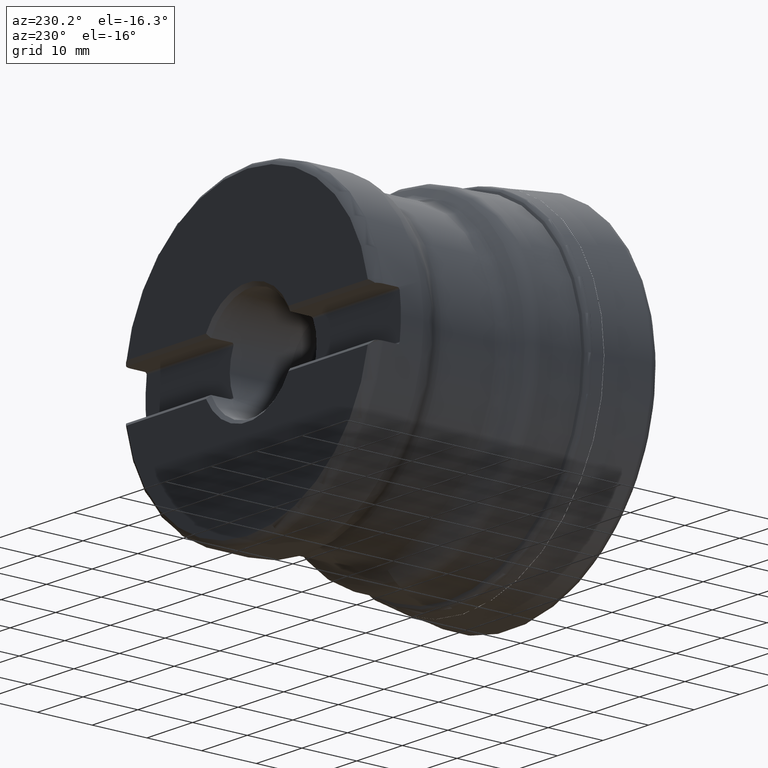
[diagram: clean part render]
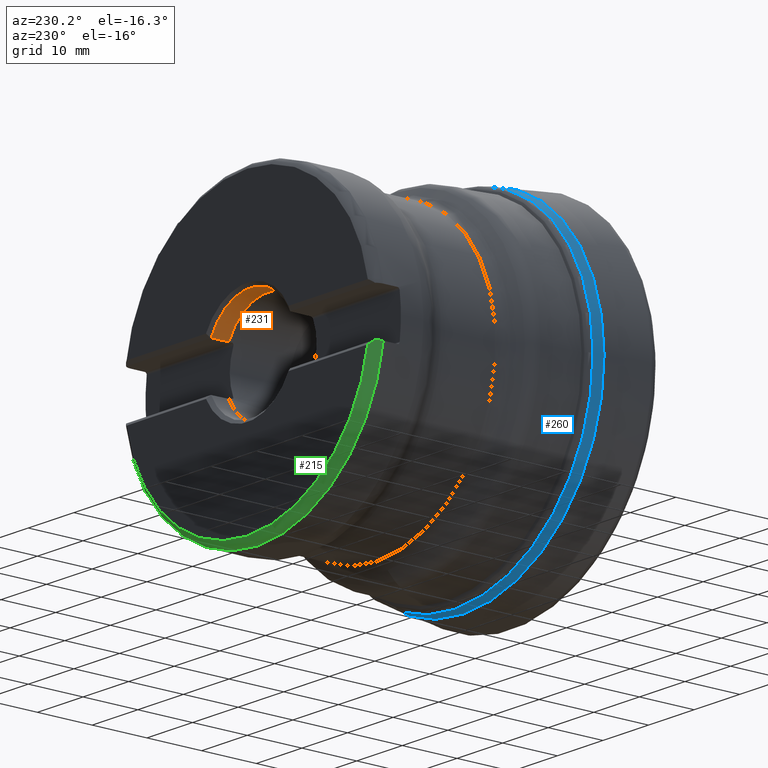
[diagram: same view with three faces highlighted in distinct colors, each labeled with its STEP entity id]
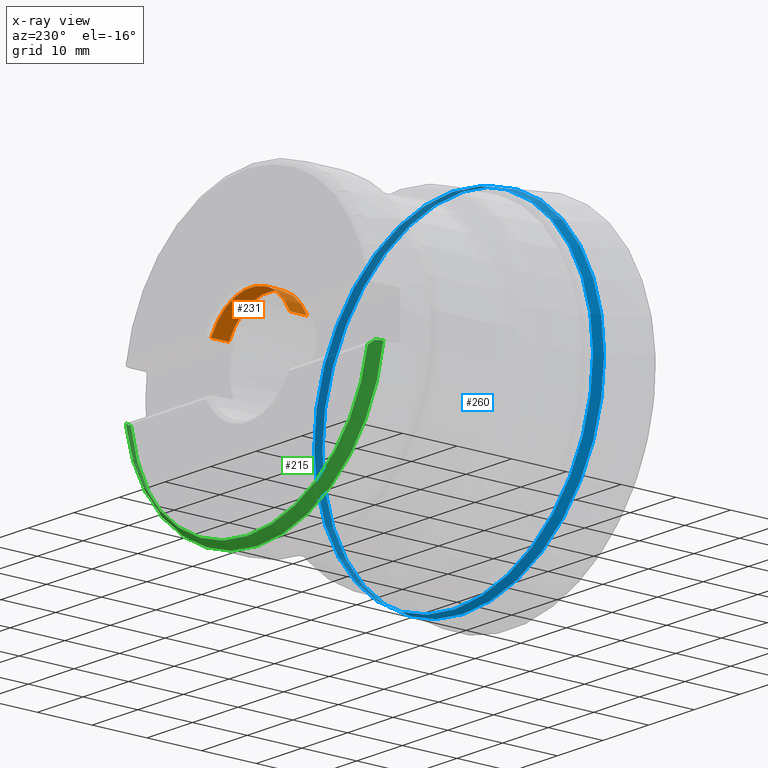
[diagram: x-ray of the same camera — body ghosted, the three highlighted faces saturated]
A machine part, auxiliary view with three faces highlighted in distinct colors.
The next image is the same camera in x-ray (body ghosted, the three faces saturated) — at least one of them is partly hidden behind the body in this view.
Their STEP definitions:

[orange] entity #231 — the highlighted conical surface has half-angle 1.5 deg.
#173=CONICAL_SURFACE('',#1142,9.525,1.50000000000001);
#201=FACE_OUTER_BOUND('',#519,.T.);
#231=ADVANCED_FACE('',(#201),#173,.F.);
#312=B_SPLINE_CURVE_WITH_KNOTS('',3,(#1762,#1763,#1764,#1765,#1766,#1767,
#1768),.UNSPECIFIED.,.F.,.F.,(4,3,4),(0.,0.614920846963345,1.),
 .UNSPECIFIED.);
#313=B_SPLINE_CURVE_WITH_KNOTS('',3,(#1772,#1773,#1774,#1775,#1776,#1777,
#1778),.UNSPECIFIED.,.F.,.F.,(4,3,4),(0.,0.38507915303665,1.),
 .UNSPECIFIED.);
#519=EDGE_LOOP('',(#711,#712,#713,#714));
#711=ORIENTED_EDGE('',*,*,#977,.T.);
#712=ORIENTED_EDGE('',*,*,#994,.T.);
#713=ORIENTED_EDGE('',*,*,#979,.T.);
#714=ORIENTED_EDGE('',*,*,#993,.F.);
#877=VERTEX_POINT('',#1761);
#878=VERTEX_POINT('',#1769);
#879=VERTEX_POINT('',#1779);
#880=VERTEX_POINT('',#1780);
#977=EDGE_CURVE('',#878,#877,#312,.T.);
#979=EDGE_CURVE('',#879,#880,#313,.T.);
#993=EDGE_CURVE('',#878,#880,#1062,.T.);
#994=EDGE_CURVE('',#877,#879,#1063,.T.);
#1062=CIRCLE('',#1139,9.525);
#1063=CIRCLE('',#1141,9.60837246437858);
#1139=AXIS2_PLACEMENT_3D('',#1826,#1302,#1303);
#1141=AXIS2_PLACEMENT_3D('',#1828,#1306,#1307);
#1142=AXIS2_PLACEMENT_3D('',#1829,#1308,#1309);
#1302=DIRECTION('',(0.,1.,0.));
#1303=DIRECTION('',(0.,0.,-1.));
#1306=DIRECTION('',(0.,1.,0.));
#1307=DIRECTION('',(0.,0.,-1.));
#1308=DIRECTION('',(0.,1.,0.));
#1309=DIRECTION('',(0.,3.88614664590141E-16,1.));
#1761=CARTESIAN_POINT('',(-8.65391220282645,49.3838659624142,4.175));
#1762=CARTESIAN_POINT('',(-8.5612499087458,46.2,4.175));
#1763=CARTESIAN_POINT('',(-8.58026279418307,46.8526079482186,4.175));
#1764=CARTESIAN_POINT('',(-8.59926352210968,47.5052162507395,4.175));
#1765=CARTESIAN_POINT('',(-8.61825233211779,48.15782489992,4.175));
#1766=CARTESIAN_POINT('',(-8.63014361035592,48.5665051186754,4.175));
#1767=CARTESIAN_POINT('',(-8.64203021474974,48.9751854734507,4.175));
#1768=CARTESIAN_POINT('',(-8.65391220282645,49.3838659624142,4.175));
#1769=CARTESIAN_POINT('',(-8.5612499087458,46.2,4.175));
#1772=CARTESIAN_POINT('',(8.65391220282645,49.3838659624142,4.175));
#1773=CARTESIAN_POINT('',(8.64203021474975,48.9751854734507,4.175));
#1774=CARTESIAN_POINT('',(8.63014361035592,48.5665051186754,4.175));
#1775=CARTESIAN_POINT('',(8.61825233211779,48.15782489992,4.175));
#1776=CARTESIAN_POINT('',(8.59926352210968,47.5052162507395,4.175));
#1777=CARTESIAN_POINT('',(8.58026279418307,46.8526079482186,4.175));
#1778=CARTESIAN_POINT('',(8.5612499087458,46.2,4.175));
#1779=CARTESIAN_POINT('',(8.65391220282645,49.3838659624142,4.175));
#1780=CARTESIAN_POINT('',(8.5612499087458,46.2,4.175));
#1826=CARTESIAN_POINT('',(0.,46.2,0.));
#1828=CARTESIAN_POINT('',(0.,49.3838659624142,0.));
#1829=CARTESIAN_POINT('',(0.,46.2,0.));

[blue] entity #260 — the highlighted face is a SurfaceOfRevolution surface.
#109=SURFACE_OF_REVOLUTION('',#326,#134);
#134=AXIS1_PLACEMENT('',#1939,#1407);
#260=ADVANCED_FACE('',(#451,#452),#109,.F.);
#326=B_SPLINE_CURVE_WITH_KNOTS('',3,(#1935,#1936,#1937,#1938),
 .UNSPECIFIED.,.F.,.F.,(4,4),(0.,1.),.UNSPECIFIED.);
#451=FACE_BOUND('',#567,.T.);
#452=FACE_BOUND('',#568,.T.);
#567=EDGE_LOOP('',(#793));
#568=EDGE_LOOP('',(#794));
#793=ORIENTED_EDGE('',*,*,#1022,.T.);
#794=ORIENTED_EDGE('',*,*,#1021,.F.);
#908=VERTEX_POINT('',#1927);
#909=VERTEX_POINT('',#1934);
#1021=EDGE_CURVE('',#908,#908,#1082,.T.);
#1022=EDGE_CURVE('',#909,#909,#1083,.T.);
#1082=CIRCLE('',#1185,30.5815042259596);
#1083=CIRCLE('',#1186,30.8908726794683);
#1185=AXIS2_PLACEMENT_3D('',#1926,#1402,#1403);
#1186=AXIS2_PLACEMENT_3D('',#1933,#1405,#1406);
#1402=DIRECTION('',(0.,1.,0.));
#1403=DIRECTION('',(0.,0.,1.));
#1405=DIRECTION('',(0.,1.,0.));
#1406=DIRECTION('',(0.,0.,1.));
#1407=DIRECTION('',(0.,1.,0.));
#1926=CARTESIAN_POINT('',(0.,12.2726431788866,0.));
#1927=CARTESIAN_POINT('',(0.,12.2726431788866,30.5815042259596));
#1933=CARTESIAN_POINT('',(0.,10.5260621758159,0.));
#1934=CARTESIAN_POINT('',(0.,10.5260621758159,30.8908726794683));
#1935=CARTESIAN_POINT('',(29.8436291756557,12.2726431788867,6.67728974572297));
#1936=CARTESIAN_POINT('',(29.9106230198357,11.6888456324071,6.84050614590343));
#1937=CARTESIAN_POINT('',(29.9772181123868,11.1072441559266,7.01184970976451));
#1938=CARTESIAN_POINT('',(30.0437379035794,10.5260621758159,7.18469398653485));
#1939=CARTESIAN_POINT('',(0.,0.,0.));

[green] entity #215 — the highlighted toroidal blend (fillet) surface has major radius 26 mm and minor (blend) radius 2 mm.
#180=TOROIDAL_SURFACE('',#1112,26.,2.);
#190=FACE_OUTER_BOUND('',#498,.T.);
#215=ADVANCED_FACE('',(#190),#180,.T.);
#303=B_SPLINE_CURVE_WITH_KNOTS('',3,(#1601,#1602,#1603,#1604,#1605,#1606,
#1607,#1608,#1609,#1610),.UNSPECIFIED.,.F.,.F.,(4,3,3,4),(0.,0.203756899982069,
0.51868175983276,1.),.UNSPECIFIED.);
#304=B_SPLINE_CURVE_WITH_KNOTS('',3,(#1612,#1613,#1614,#1615,#1616,#1617,
#1618),.UNSPECIFIED.,.F.,.F.,(4,3,4),(0.,0.850263166844788,1.),
 .UNSPECIFIED.);
#305=B_SPLINE_CURVE_WITH_KNOTS('',3,(#1622,#1623,#1624,#1625,#1626,#1627,
#1628),.UNSPECIFIED.,.F.,.F.,(4,3,4),(0.,0.85608668303555,1.),
 .UNSPECIFIED.);
#306=B_SPLINE_CURVE_WITH_KNOTS('',3,(#1630,#1631,#1632,#1633,#1634,#1635,
#1636,#1637,#1638,#1639),.UNSPECIFIED.,.F.,.F.,(4,3,3,4),(0.,0.178725011269814,
0.703852005194715,1.),.UNSPECIFIED.);
#498=EDGE_LOOP('',(#632,#633,#634,#635,#636,#637));
#632=ORIENTED_EDGE('',*,*,#948,.T.);
#633=ORIENTED_EDGE('',*,*,#949,.T.);
#634=ORIENTED_EDGE('',*,*,#950,.F.);
#635=ORIENTED_EDGE('',*,*,#951,.T.);
#636=ORIENTED_EDGE('',*,*,#952,.T.);
#637=ORIENTED_EDGE('',*,*,#938,.F.);
#847=VERTEX_POINT('',#1520);
#848=VERTEX_POINT('',#1522);
#856=VERTEX_POINT('',#1611);
#857=VERTEX_POINT('',#1619);
#858=VERTEX_POINT('',#1621);
#859=VERTEX_POINT('',#1629);
#938=EDGE_CURVE('',#847,#848,#1046,.T.);
#948=EDGE_CURVE('',#847,#856,#303,.T.);
#949=EDGE_CURVE('',#856,#857,#304,.T.);
#950=EDGE_CURVE('',#858,#857,#1049,.T.);
#951=EDGE_CURVE('',#858,#859,#305,.T.);
#952=EDGE_CURVE('',#859,#848,#306,.T.);
#1046=CIRCLE('',#1106,28.);
#1049=CIRCLE('',#1111,26.8717797887081);
#1106=AXIS2_PLACEMENT_3D('',#1521,#1219,#1220);
#1111=AXIS2_PLACEMENT_3D('',#1620,#1230,#1231);
#1112=AXIS2_PLACEMENT_3D('',#1640,#1232,#1233);
#1219=DIRECTION('',(0.,-1.,0.));
#1220=DIRECTION('',(0.,0.,-1.));
#1230=DIRECTION('',(0.,1.,0.));
#1231=DIRECTION('',(0.,0.,-1.));
#1232=DIRECTION('',(0.,-1.,0.));
#1233=DIRECTION('',(0.,0.,-1.));
#1520=CARTESIAN_POINT('',(-27.6869892729419,48.1999999999985,-4.17500000000001));
#1521=CARTESIAN_POINT('',(0.,48.1999999999985,0.));
#1522=CARTESIAN_POINT('',(27.6869892729419,48.1999999999985,-4.17500000000001));
#1601=CARTESIAN_POINT('',(-27.6869892729419,48.1999999999985,-4.17500000000001));
#1602=CARTESIAN_POINT('',(-27.6869892729419,48.2874265530193,-4.17500000000001));
#1603=CARTESIAN_POINT('',(-27.6811658843448,48.3750445119436,-4.17500000000001));
#1604=CARTESIAN_POINT('',(-27.6695987723003,48.4617024838334,-4.17500000000001));
#1605=CARTESIAN_POINT('',(-27.6516527896601,48.5961493927236,-4.17500000000001));
#1606=CARTESIAN_POINT('',(-27.6196401286904,48.7294324196595,-4.175));
#1607=CARTESIAN_POINT('',(-27.5746046468962,48.8573770755957,-4.175));
#1608=CARTESIAN_POINT('',(-27.5063961486204,49.0511556807344,-4.175));
#1609=CARTESIAN_POINT('',(-27.406572586838,49.2363423371672,-4.175));
#1610=CARTESIAN_POINT('',(-27.2824004625726,49.3999999999941,-4.175));
#1611=CARTESIAN_POINT('',(-27.2824004625726,49.3999999999941,-4.175));
#1612=CARTESIAN_POINT('',(-27.2824004625726,49.3999999999941,-4.175));
#1613=CARTESIAN_POINT('',(-27.0990812827073,49.6010607950726,-4.37606079507849));
#1614=CARTESIAN_POINT('',(-26.8670316613896,49.7858796966456,-4.56087969664707));
#1615=CARTESIAN_POINT('',(-26.5946972773022,49.9278141737563,-4.7028141737578));
#1616=CARTESIAN_POINT('',(-26.5458853691062,49.9532538283551,-4.72825382835664));
#1617=CARTESIAN_POINT('',(-26.4956502891116,49.977389782436,-4.75238978243751));
#1618=CARTESIAN_POINT('',(-26.4441283466259,49.9999999999985,-4.775));
#1619=CARTESIAN_POINT('',(-26.4441283466259,49.9999999999985,-4.775));
#1620=CARTESIAN_POINT('',(0.,49.9999999999985,0.));
#1621=CARTESIAN_POINT('',(26.4441283466259,49.9999999999985,-4.775));
#1622=CARTESIAN_POINT('',(26.4441283466259,49.9999999999985,-4.775));
#1623=CARTESIAN_POINT('',(26.7334386700481,49.8730372140465,-4.64803721404796));
#1624=CARTESIAN_POINT('',(26.9839983993905,49.6968081442516,-4.47180814425311));
#1625=CARTESIAN_POINT('',(27.1838680002085,49.5018828971171,-4.27688289711858));
#1626=CARTESIAN_POINT('',(27.2180217207347,49.468574067826,-4.24357406782747));
#1627=CARTESIAN_POINT('',(27.2508726244813,49.4345790996743,-4.20957909967575));
#1628=CARTESIAN_POINT('',(27.2824004625693,49.3999999999985,-4.175));
#1629=CARTESIAN_POINT('',(27.2824004625693,49.3999999999985,-4.175));
#1630=CARTESIAN_POINT('',(27.2824004625693,49.3999999999985,-4.175));
#1631=CARTESIAN_POINT('',(27.32886865204,49.3387553742057,-4.175));
#1632=CARTESIAN_POINT('',(27.3718730529453,49.2747216785804,-4.175));
#1633=CARTESIAN_POINT('',(27.4109717337188,49.2085288543246,-4.175));
#1634=CARTESIAN_POINT('',(27.5251326156874,49.0152581084189,-4.175));
#1635=CARTESIAN_POINT('',(27.6073100003392,48.7994036261026,-4.17500000000001));
#1636=CARTESIAN_POINT('',(27.650322098768,48.5790941901187,-4.17500000000001));
#1637=CARTESIAN_POINT('',(27.6746487522566,48.4544922407781,-4.17500000000001));
#1638=CARTESIAN_POINT('',(27.6869892729419,48.3269544479293,-4.17500000000001));
#1639=CARTESIAN_POINT('',(27.6869892729419,48.1999999999985,-4.17500000000001));
#1640=CARTESIAN_POINT('',(0.,48.1999999999985,0.));